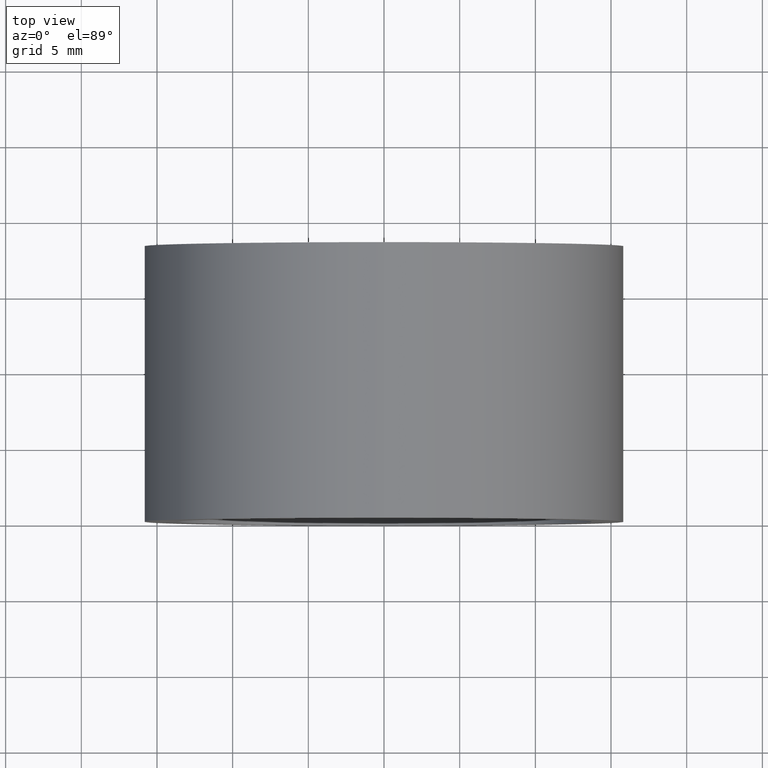
[diagram: clean part render]
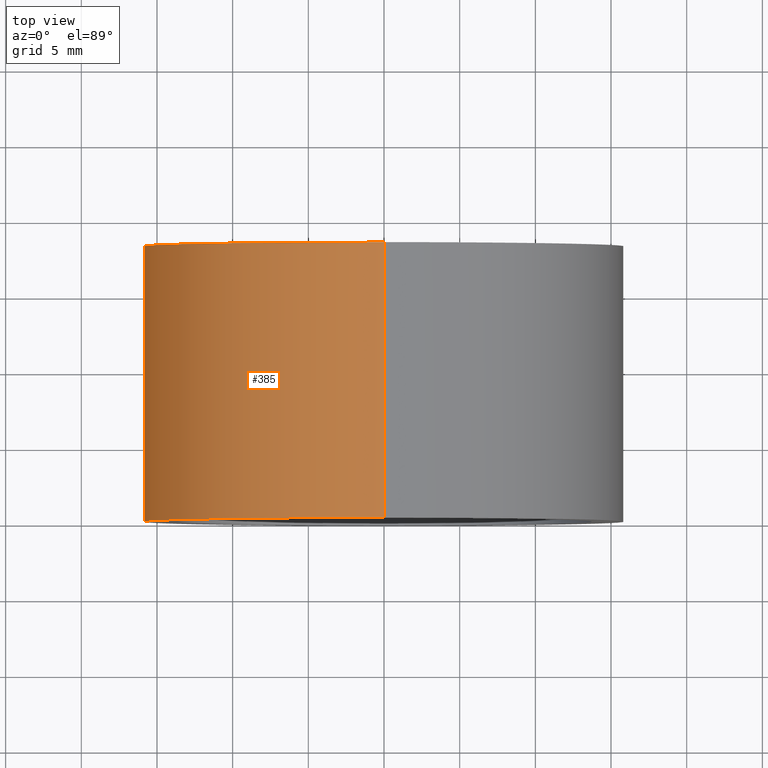
[diagram: same view with one face highlighted and labeled with its STEP entity id]
A machine part, top view. The second image highlights one B-rep face of the part: STEP entity #385.
In plain terms, the highlighted cylindrical surface (partial cylindrical patch) has radius 15.85 mm, axis along (-0, 1, -0).
Its self-contained STEP definition (entity closure, byte-faithful):
#4 = DIRECTION ( 'NONE',  ( -0.0000000000000000000, 1.000000000000000000, -0.0000000000000000000 ) ) ;
#27 = VERTEX_POINT ( 'NONE', #465 ) ;
#38 = DIRECTION ( 'NONE',  ( -0.0000000000000000000, 1.000000000000000000, -0.0000000000000000000 ) ) ;
#60 = CARTESIAN_POINT ( 'NONE',  ( 1.941065176648557100E-015, 18.19999999999999600, -15.85000000000002100 ) ) ;
#64 = ORIENTED_EDGE ( 'NONE', *, *, #595, .F. ) ;
#82 = CARTESIAN_POINT ( 'NONE',  ( 0.0000000000000000000, 161.3761669434274500, 15.85000000000002100 ) ) ;
#92 = CYLINDRICAL_SURFACE ( 'NONE', #550, 15.85000000000002100 ) ;
#121 = LINE ( 'NONE', #82, #382 ) ;
#123 = CARTESIAN_POINT ( 'NONE',  ( 0.0000000000000000000, 18.19999999999999600, 0.0000000000000000000 ) ) ;
#165 = CARTESIAN_POINT ( 'NONE',  ( 0.0000000000000000000, 161.3761669434274500, 0.0000000000000000000 ) ) ;
#170 = VERTEX_POINT ( 'NONE', #60 ) ;
#188 = VERTEX_POINT ( 'NONE', #589 ) ;
#231 = ORIENTED_EDGE ( 'NONE', *, *, #404, .T. ) ;
#252 = EDGE_LOOP ( 'NONE', ( #64, #351, #231, #281 ) ) ;
#264 = DIRECTION ( 'NONE',  ( 0.0000000000000000000, 0.0000000000000000000, 1.000000000000000000 ) ) ;
#273 = DIRECTION ( 'NONE',  ( -0.0000000000000000000, 1.000000000000000000, -0.0000000000000000000 ) ) ;
#281 = ORIENTED_EDGE ( 'NONE', *, *, #419, .F. ) ;
#295 = DIRECTION ( 'NONE',  ( -0.0000000000000000000, 1.000000000000000000, -0.0000000000000000000 ) ) ;
#305 = FACE_OUTER_BOUND ( 'NONE', #252, .T. ) ;
#316 = AXIS2_PLACEMENT_3D ( 'NONE', #479, #4, #582 ) ;
#351 = ORIENTED_EDGE ( 'NONE', *, *, #511, .T. ) ;
#360 = VECTOR ( 'NONE', #295, 1000.000000000000000 ) ;
#361 = DIRECTION ( 'NONE',  ( -0.0000000000000000000, 1.000000000000000000, -0.0000000000000000000 ) ) ;
#367 = CIRCLE ( 'NONE', #316, 15.85000000000002100 ) ;
#382 = VECTOR ( 'NONE', #38, 1000.000000000000000 ) ;
#385 = ADVANCED_FACE ( 'NONE', ( #305 ), #92, .T. ) ;
#404 = EDGE_CURVE ( 'NONE', #27, #188, #121, .T. ) ;
#419 = EDGE_CURVE ( 'NONE', #170, #188, #480, .T. ) ;
#423 = VERTEX_POINT ( 'NONE', #616 ) ;
#465 = CARTESIAN_POINT ( 'NONE',  ( 0.0000000000000000000, -2.775557561562891400E-014, 15.85000000000002100 ) ) ;
#479 = CARTESIAN_POINT ( 'NONE',  ( 0.0000000000000000000, -2.775557561562891400E-014, 0.0000000000000000000 ) ) ;
#480 = CIRCLE ( 'NONE', #555, 15.85000000000002100 ) ;
#511 = EDGE_CURVE ( 'NONE', #423, #27, #367, .T. ) ;
#525 = LINE ( 'NONE', #575, #360 ) ;
#550 = AXIS2_PLACEMENT_3D ( 'NONE', #165, #361, #264 ) ;
#555 = AXIS2_PLACEMENT_3D ( 'NONE', #123, #273, #572 ) ;
#572 = DIRECTION ( 'NONE',  ( 0.0000000000000000000, 0.0000000000000000000, 1.000000000000000000 ) ) ;
#575 = CARTESIAN_POINT ( 'NONE',  ( 1.941065176648557100E-015, 161.3761669434274500, -15.85000000000002100 ) ) ;
#582 = DIRECTION ( 'NONE',  ( 0.0000000000000000000, 0.0000000000000000000, 1.000000000000000000 ) ) ;
#589 = CARTESIAN_POINT ( 'NONE',  ( 0.0000000000000000000, 18.19999999999999600, 15.85000000000002100 ) ) ;
#595 = EDGE_CURVE ( 'NONE', #423, #170, #525, .T. ) ;
#616 = CARTESIAN_POINT ( 'NONE',  ( 1.941065176648557100E-015, -2.775557561562891400E-014, -15.85000000000002100 ) ) ;